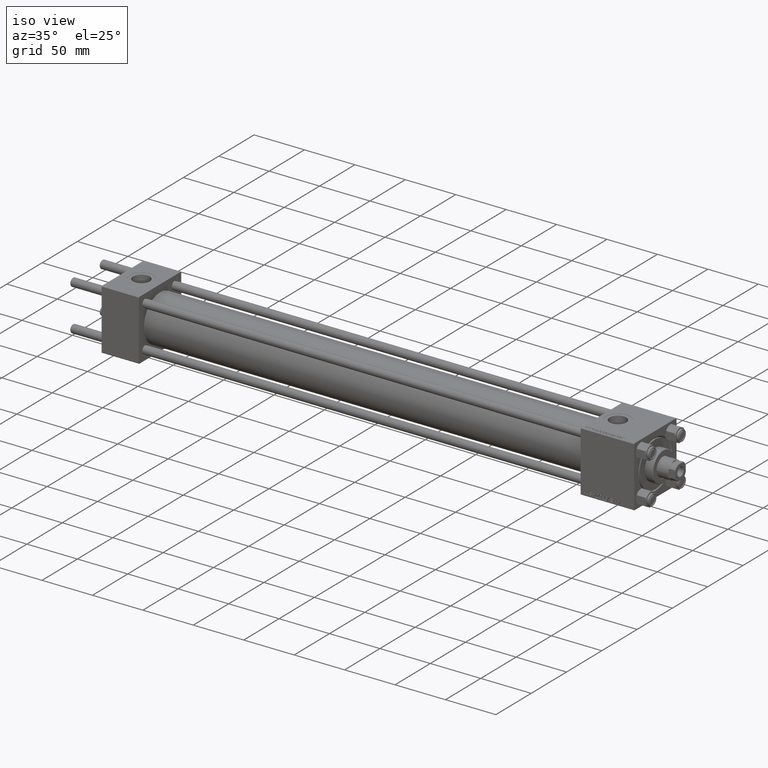
[diagram: clean part render]
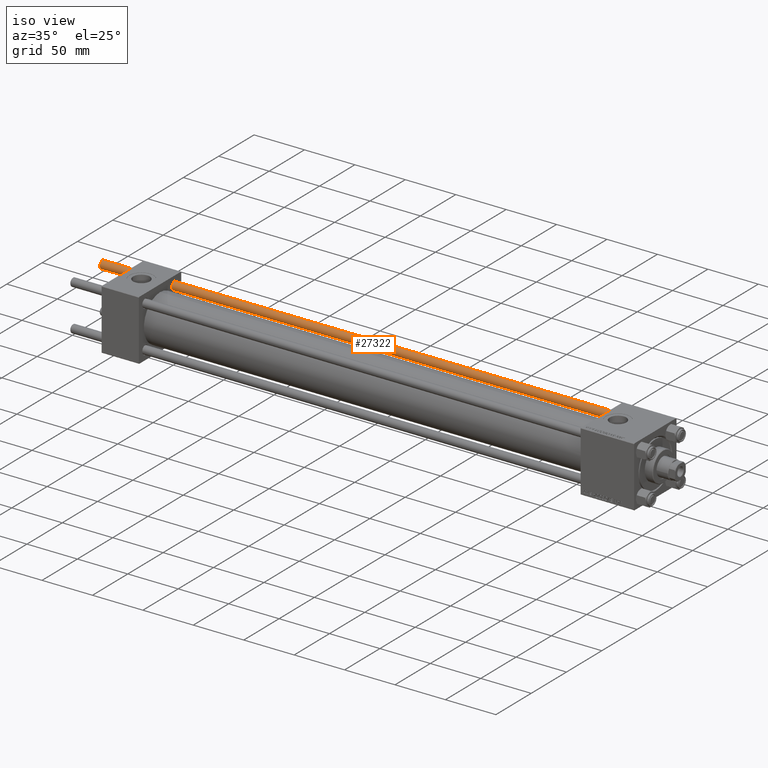
[diagram: same view with one face highlighted and labeled with its STEP entity id]
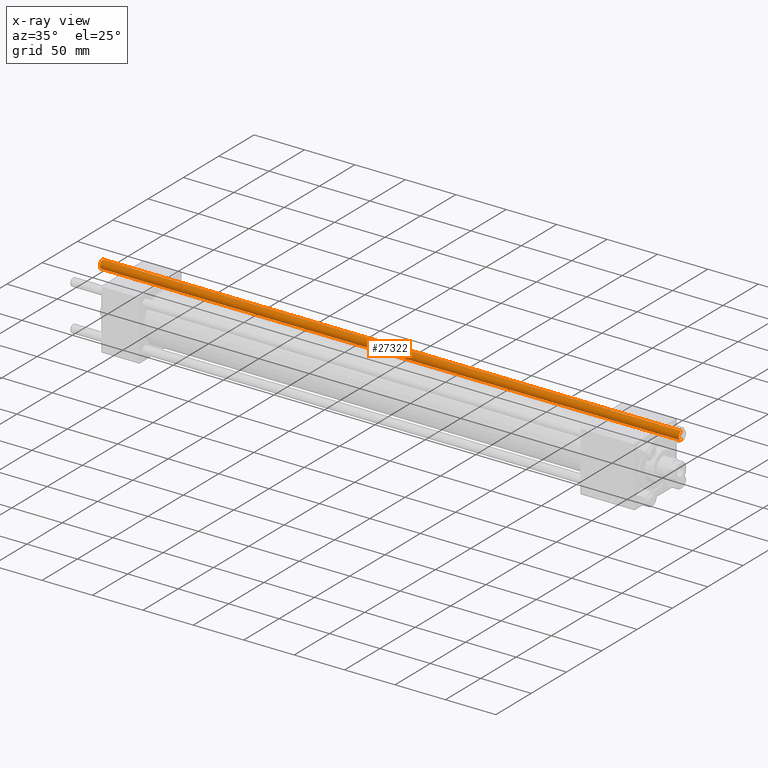
[diagram: x-ray of the same camera — body ghosted, the highlighted face saturated]
A machine part, iso view. The second image highlights one B-rep face of the part: STEP entity #27322.
The next image is the same camera in x-ray: the body ghosted, the highlighted face saturated — about 0% of this face is hidden behind the body in this view.
In plain terms, the highlighted cylindrical surface (edge-blend (fillet) strip) has radius 4 mm, axis along (-1, -0, -0).
Its self-contained STEP definition (entity closure, byte-faithful):
#1327 = CARTESIAN_POINT ( 'NONE',  ( 0.000000000000000000, 0.000000000000000000, 574.5000000000000000 ) ) ;
#3124 = CARTESIAN_POINT ( 'NONE',  ( 0.000000000000000000, 0.000000000000000000, 575.0000000000000000 ) ) ;
#3928 = VECTOR ( 'NONE', #25774, 1000.000000000000000 ) ;
#7171 = DIRECTION ( 'NONE',  ( -1.000000000000000000, 0.000000000000000000, 0.000000000000000000 ) ) ;
#10136 = CARTESIAN_POINT ( 'NONE',  ( 4.000000000000000000, 4.898587196589412829E-16, 574.5000000000000000 ) ) ;
#11072 = EDGE_CURVE ( 'NONE', #28137, #44989, #29545, .T. ) ;
#12477 = CARTESIAN_POINT ( 'NONE',  ( -4.000000000000000000, 0.000000000000000000, 575.0000000000000000 ) ) ;
#16234 = DIRECTION ( 'NONE',  ( 0.000000000000000000, 0.000000000000000000, -1.000000000000000000 ) ) ;
#16287 = CARTESIAN_POINT ( 'NONE',  ( -4.000000000000000000, 0.000000000000000000, 0.5000000000000559552 ) ) ;
#16972 = ORIENTED_EDGE ( 'NONE', *, *, #11072, .F. ) ;
#16992 = CARTESIAN_POINT ( 'NONE',  ( 4.000000000000000000, 4.898587196589412829E-16, 0.5000000000000559552 ) ) ;
#19062 = ORIENTED_EDGE ( 'NONE', *, *, #23342, .T. ) ;
#19200 = EDGE_LOOP ( 'NONE', ( #16972, #19062, #33393, #49233 ) ) ;
#20733 = DIRECTION ( 'NONE',  ( 1.000000000000000000, 0.000000000000000000, 0.000000000000000000 ) ) ;
#21387 = VECTOR ( 'NONE', #43466, 1000.000000000000000 ) ;
#21581 = VERTEX_POINT ( 'NONE', #21869 ) ;
#21869 = CARTESIAN_POINT ( 'NONE',  ( -4.000000000000000000, 0.000000000000000000, 574.5000000000000000 ) ) ;
#21972 = CIRCLE ( 'NONE', #26788, 4.000000000000000000 ) ;
#22328 = DIRECTION ( 'NONE',  ( -0.000000000000000000, -0.000000000000000000, -1.000000000000000000 ) ) ;
#23342 = EDGE_CURVE ( 'NONE', #28137, #21581, #21972, .T. ) ;
#24265 = CARTESIAN_POINT ( 'NONE',  ( 0.000000000000000000, 0.000000000000000000, 0.5000000000000559552 ) ) ;
#24560 = DIRECTION ( 'NONE',  ( 1.000000000000000000, 0.000000000000000000, 0.000000000000000000 ) ) ;
#25774 = DIRECTION ( 'NONE',  ( -0.000000000000000000, -0.000000000000000000, -1.000000000000000000 ) ) ;
#26788 = AXIS2_PLACEMENT_3D ( 'NONE', #1327, #16234, #24560 ) ;
#27322 = ADVANCED_FACE ( 'NONE', ( #29373 ), #45239, .T. ) ;
#28137 = VERTEX_POINT ( 'NONE', #10136 ) ;
#28365 = LINE ( 'NONE', #12477, #21387 ) ;
#29373 = FACE_OUTER_BOUND ( 'NONE', #19200, .T. ) ;
#29545 = LINE ( 'NONE', #44900, #3928 ) ;
#29650 = AXIS2_PLACEMENT_3D ( 'NONE', #3124, #22328, #7171 ) ;
#31278 = VERTEX_POINT ( 'NONE', #16287 ) ;
#33393 = ORIENTED_EDGE ( 'NONE', *, *, #49330, .T. ) ;
#37998 = CIRCLE ( 'NONE', #47632, 4.000000000000000000 ) ;
#39034 = EDGE_CURVE ( 'NONE', #31278, #44989, #37998, .T. ) ;
#39375 = DIRECTION ( 'NONE',  ( -0.000000000000000000, -0.000000000000000000, 1.000000000000000000 ) ) ;
#43466 = DIRECTION ( 'NONE',  ( -0.000000000000000000, -0.000000000000000000, -1.000000000000000000 ) ) ;
#44900 = CARTESIAN_POINT ( 'NONE',  ( 4.000000000000000000, 4.898587196589412829E-16, 575.0000000000000000 ) ) ;
#44989 = VERTEX_POINT ( 'NONE', #16992 ) ;
#45239 = CYLINDRICAL_SURFACE ( 'NONE', #29650, 4.000000000000000000 ) ;
#47632 = AXIS2_PLACEMENT_3D ( 'NONE', #24265, #39375, #20733 ) ;
#49233 = ORIENTED_EDGE ( 'NONE', *, *, #39034, .T. ) ;
#49330 = EDGE_CURVE ( 'NONE', #21581, #31278, #28365, .T. ) ;